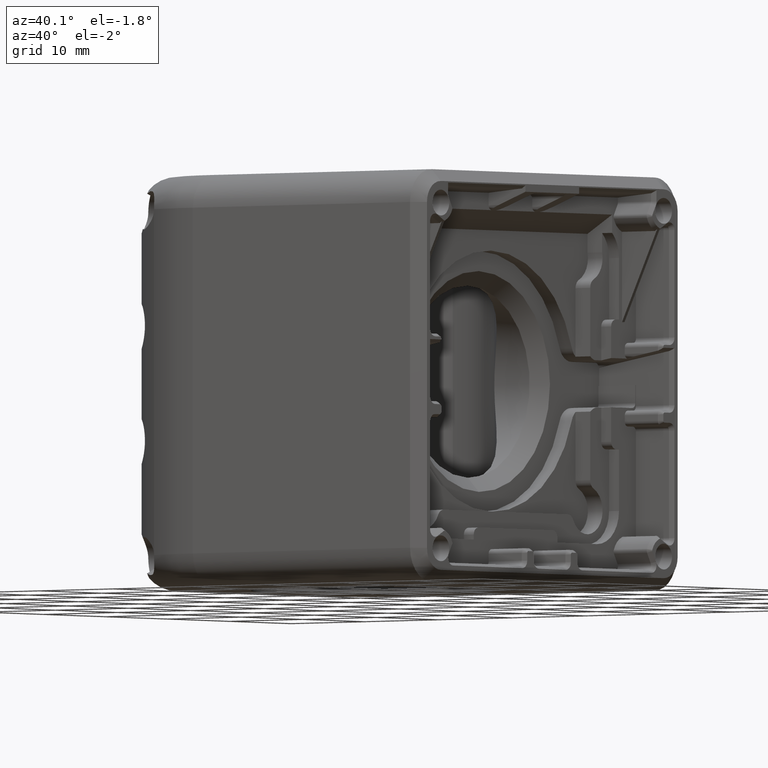
[diagram: clean part render]
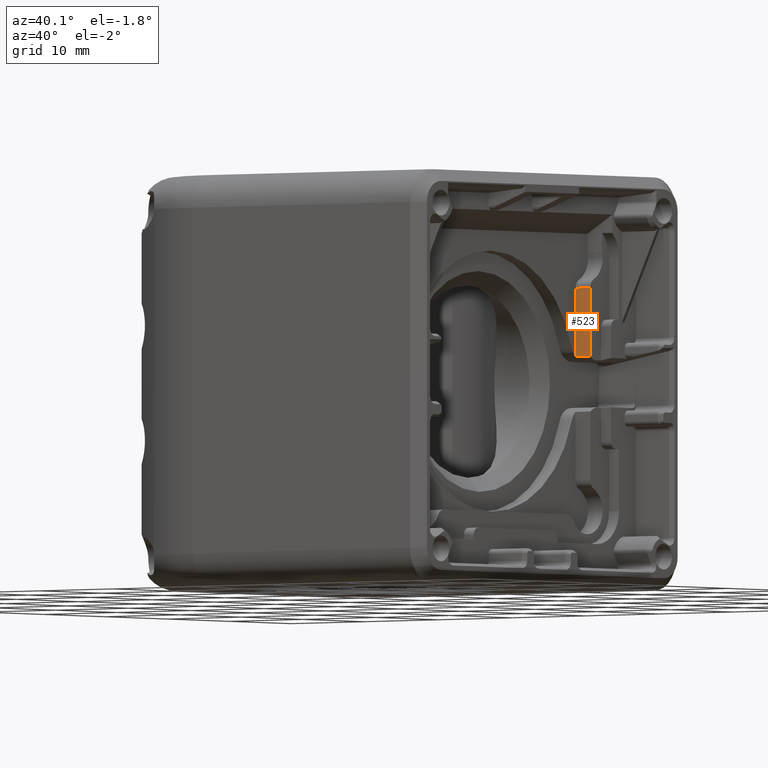
[diagram: same view with one face highlighted and labeled with its STEP entity id]
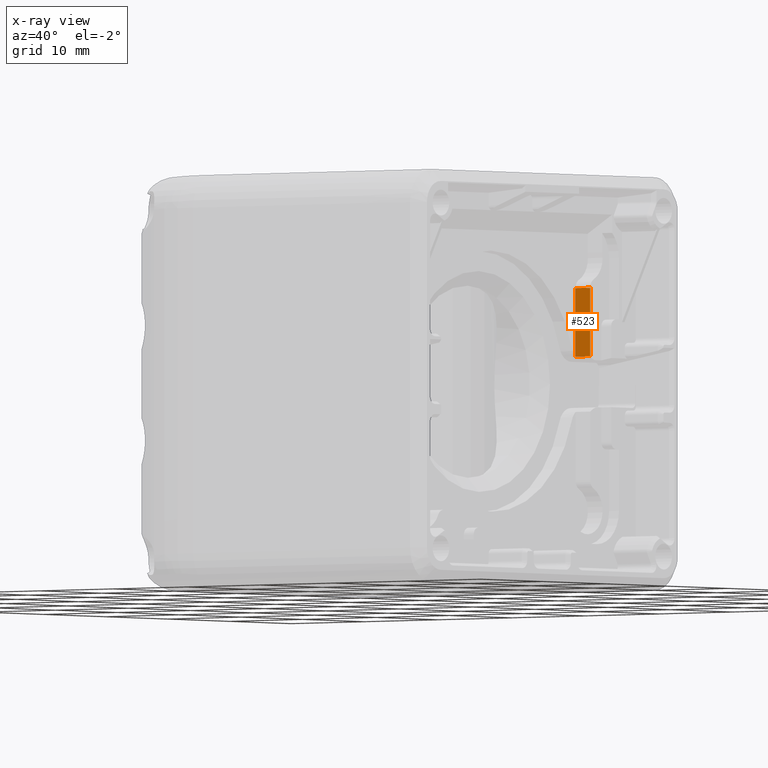
[diagram: x-ray of the same camera — body ghosted, the highlighted face saturated]
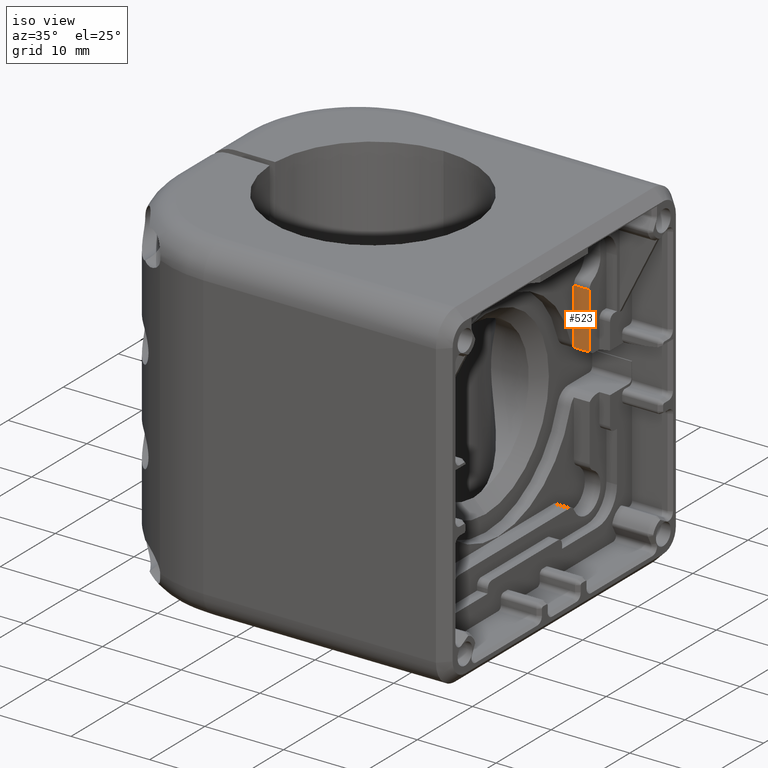
[diagram: same view with one face highlighted and labeled with its STEP entity id]
A machine part, auxiliary view. The second image highlights one B-rep face of the part: STEP entity #523.
The next image is the same camera in x-ray: the body ghosted, the highlighted face saturated — about 0% of this face is hidden behind the body in this view.
A second angle (iso view) of the same face is appended — the face is thin or edge-on in the first view.
In plain terms, the highlighted planar face has unit normal (0, -1, -0).
Its self-contained STEP definition (entity closure, byte-faithful):
#523=ADVANCED_FACE('',(#952),#4283,.T.);
#952=FACE_OUTER_BOUND('',#1417,.F.);
#1417=EDGE_LOOP('',(#2320,#2321,#2322,#2323));
#2320=ORIENTED_EDGE('',*,*,#6829,.F.);
#2321=ORIENTED_EDGE('',*,*,#6743,.T.);
#2322=ORIENTED_EDGE('',*,*,#6499,.T.);
#2323=ORIENTED_EDGE('',*,*,#6808,.T.);
#4283=PLANE('',#10241);
#6499=EDGE_CURVE('',#9492,#9491,#7587,.T.);
#6743=EDGE_CURVE('',#9254,#9492,#7684,.T.);
#6808=EDGE_CURVE('',#9491,#9220,#7727,.T.);
#6829=EDGE_CURVE('',#9254,#9220,#7739,.T.);
#7587=LINE('',#15347,#8311);
#7684=LINE('',#15833,#8408);
#7727=LINE('',#15898,#8451);
#7739=LINE('',#15919,#8463);
#8311=VECTOR('',#10887,2.);
#8408=VECTOR('',#11250,7.12960297496066);
#8451=VECTOR('',#11337,7.12960297496067);
#8463=VECTOR('',#11367,2.);
#9220=VERTEX_POINT('',#13360);
#9254=VERTEX_POINT('',#13394);
#9491=VERTEX_POINT('',#13631);
#9492=VERTEX_POINT('',#13632);
#10241=AXIS2_PLACEMENT_3D('',#16630,#12318,#12319);
#10887=DIRECTION('',(-1.,0.,0.));
#11250=DIRECTION('',(0.,4.88495654008716E-05,-0.99999999880686));
#11337=DIRECTION('',(0.,-4.88495653996258E-05,0.99999999880686));
#11367=DIRECTION('',(-1.,0.,0.));
#12318=DIRECTION('',(0.,-0.99999999880686,-4.88495653989461E-05));
#12319=DIRECTION('',(0.,-4.8849565398878E-05,0.99999999880686));
#13360=CARTESIAN_POINT('',(189.314999714696,13.6688301246315,-118.492438907802));
#13394=CARTESIAN_POINT('',(191.314999714696,13.6688301246315,-118.492438907802));
#13631=CARTESIAN_POINT('',(189.314999714696,13.6691784026393,-125.622041874256));
#13632=CARTESIAN_POINT('',(191.314999714696,13.6691784026393,-125.622041874256));
#15347=CARTESIAN_POINT('',(191.314999714696,13.6691784026393,-125.622041874256));
#15833=CARTESIAN_POINT('',(191.314999714696,13.6688301246325,-118.492438907802));
#15898=CARTESIAN_POINT('',(189.314999714696,13.6691784026393,-125.622041874256));
#15919=CARTESIAN_POINT('',(191.314999714696,13.668830124631,-118.492438907801));
#16630=CARTESIAN_POINT('',(189.114858962737,13.6698175802964,-138.706654831595));